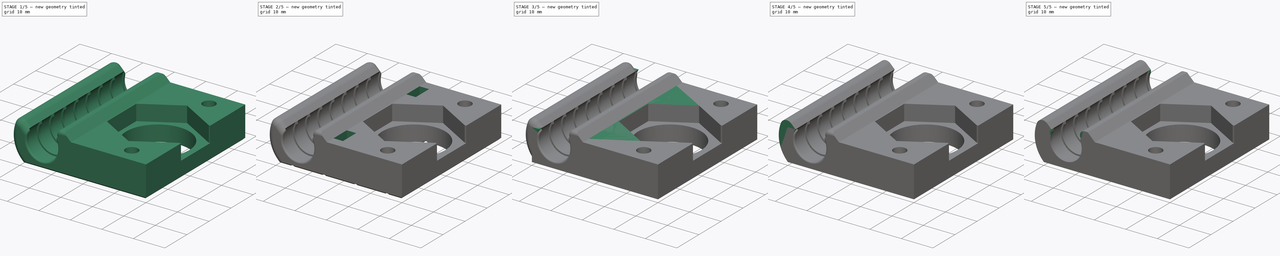
[diagram: build sequence overview — one tinted view per stage of 5, left to right]
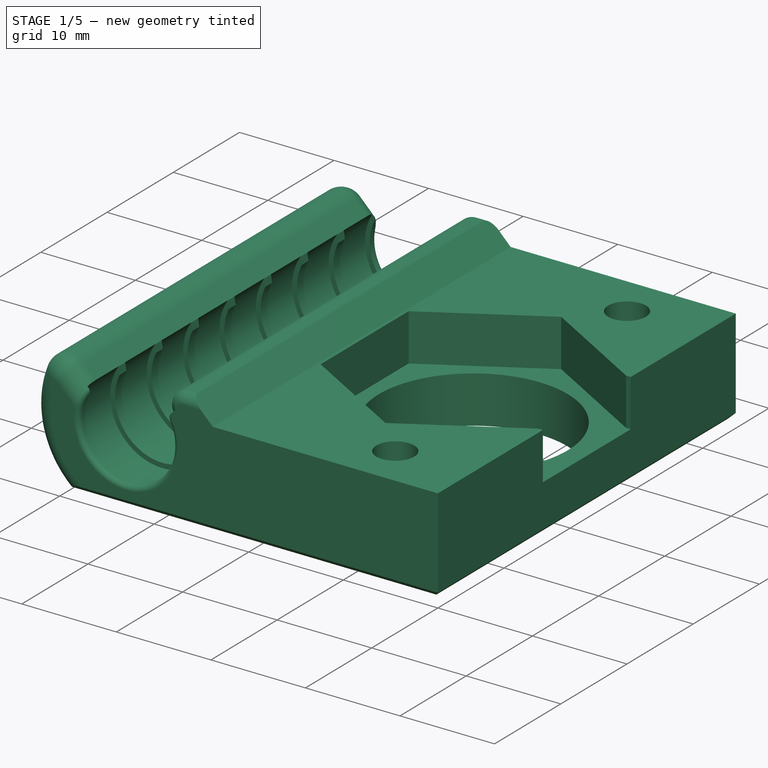
[diagram: stage 1 of 5 — iso view after this stage's code; geometry added in this stage tinted green]
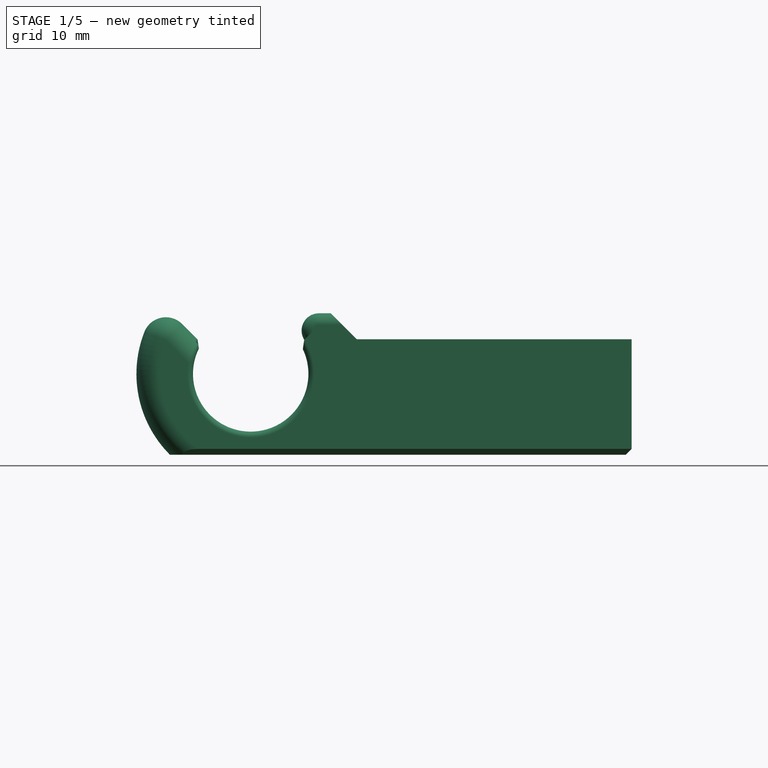
[diagram: stage 1 of 5 — front view after this stage's code; geometry added in this stage tinted green]
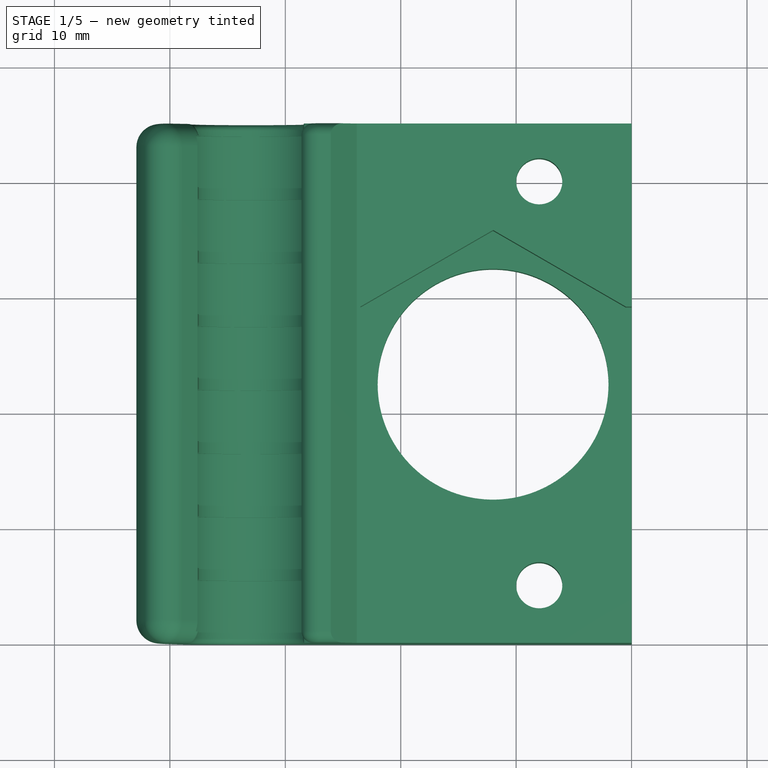
[diagram: stage 1 of 5 — top view after this stage's code; geometry added in this stage tinted green]
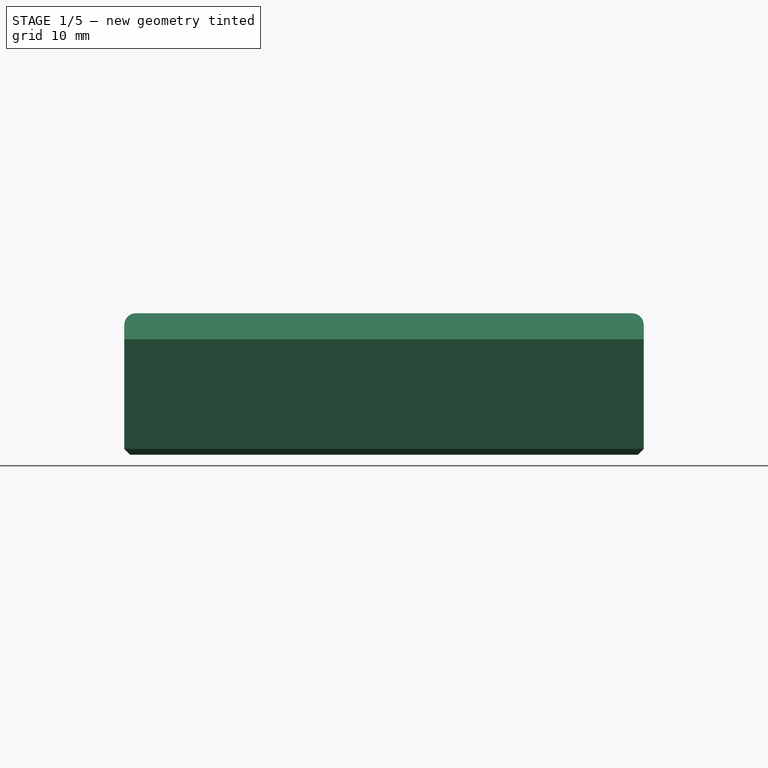
[diagram: stage 1 of 5 — right view after this stage's code; geometry added in this stage tinted green]
FCSTD DOCUMENT  (FreeCAD 0.16R6747 (Git))
Label: z-min_switch_mount_v4.1
License: All rights reserved
LicenseURL: http://en.wikipedia.org/wiki/All_rights_reserved
objects: Drawing::FeatureViewPython×19, Sketcher::SketchObject×10, PartDesign::Fillet×7, PartDesign::Pocket×6, Drawing::FeatureViewPart×6, PartDesign::Pad×4, PartDesign::Chamfer×4, PartDesign::LinearPattern×2, Part::Feature×1, Drawing::FeaturePage×1
note: 44 computed .brp shape members not serialized (recipe doc carries the construction recipe); baked Part::Feature solids carry a one-line shape summary decoded from their .brp

FEATURE [Part::Feature] Chamfer001001  label="Chamfer002"
  shape: bbox 42.9 x 45.09 x 12.25 mm, 84 faces (baked)
FEATURE [PartDesign::Chamfer] Chamfer001002
  Base = -> Chamfer001001 [Edge59,Edge57,Edge58]
  Size = 0.5
FEATURE [PartDesign::Fillet] Fillet003
  Base = -> Chamfer001002 [Edge1,Edge5]
  Radius = 2
FEATURE [PartDesign::Fillet] Fillet004
  Base = -> Fillet003 [Edge67,Edge78]
  Radius = 1
FEATURE [PartDesign::Fillet] Fillet005
  Base = -> Fillet004 [Edge68,Edge12]
  Radius = 0.5
FEATURE [Sketcher::SketchObject] Sketch007
  ExternalGeometry = -> [Fillet005]
  Placement = pos=(0,0,0) rot=(1,0,0;3.14159rad)
  Support = -> Fillet005 [Face19]
  sketch-geometry (2):
    g0: Circle CenterX=32 CenterY=-5 CenterZ=0 NormalX=0 NormalY=0 NormalZ=1 Radius=4
    g1: Circle CenterX=32 CenterY=-40 CenterZ=0 NormalX=0 NormalY=0 NormalZ=1 Radius=4
  constraints (4):
    c: Coincident(g0,g-3)
    c: Coincident(g1,g-5)
    c: Equal(g1,g-5)
    c: Equal(g-5,g0)
FEATURE [PartDesign::Pocket] Pocket003
  Length = 4
  Sketch = -> Sketch007
  Type = 0
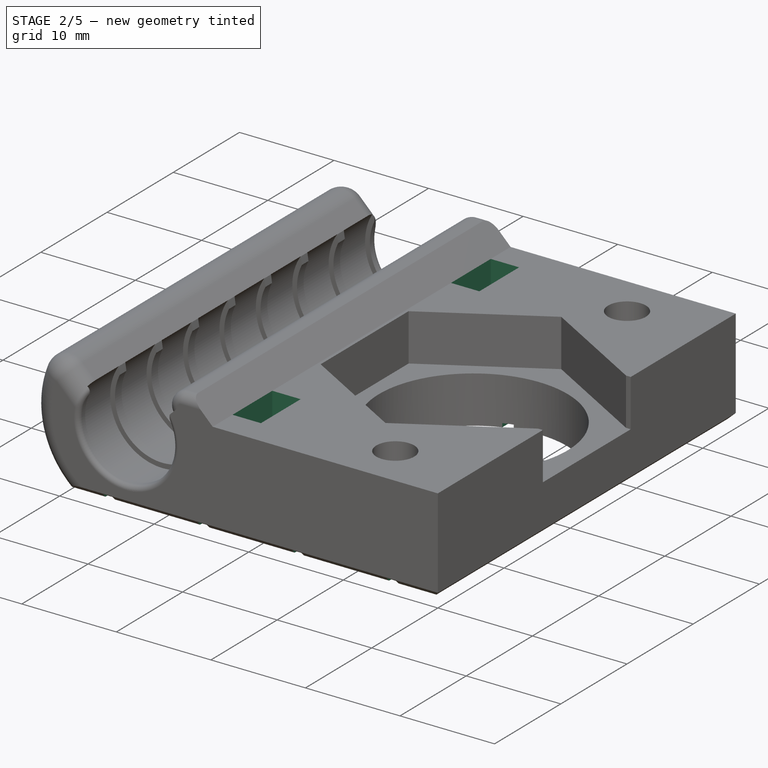
[diagram: stage 2 of 5 — iso view after this stage's code; geometry added in this stage tinted green]
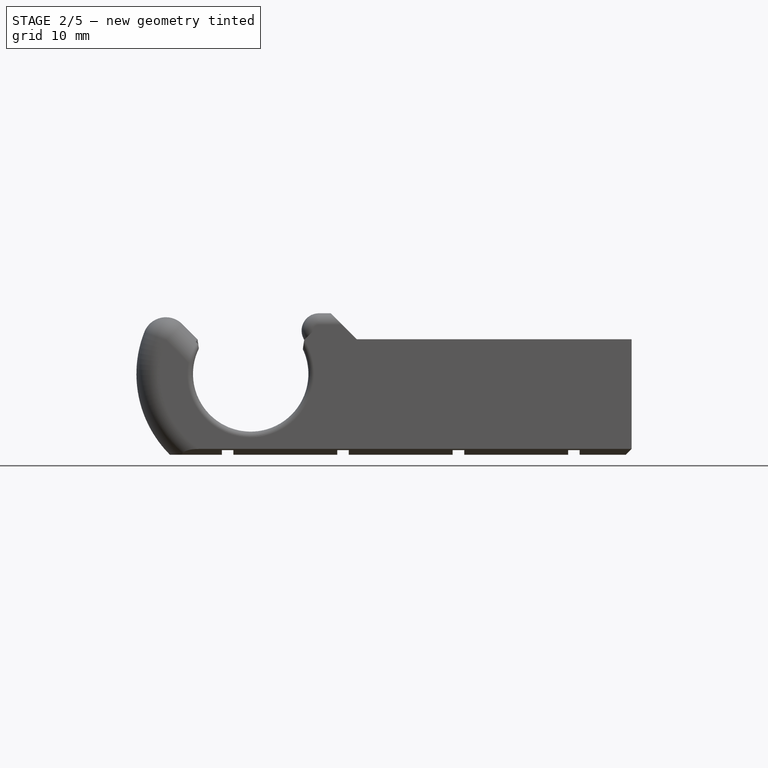
[diagram: stage 2 of 5 — front view after this stage's code; geometry added in this stage tinted green]
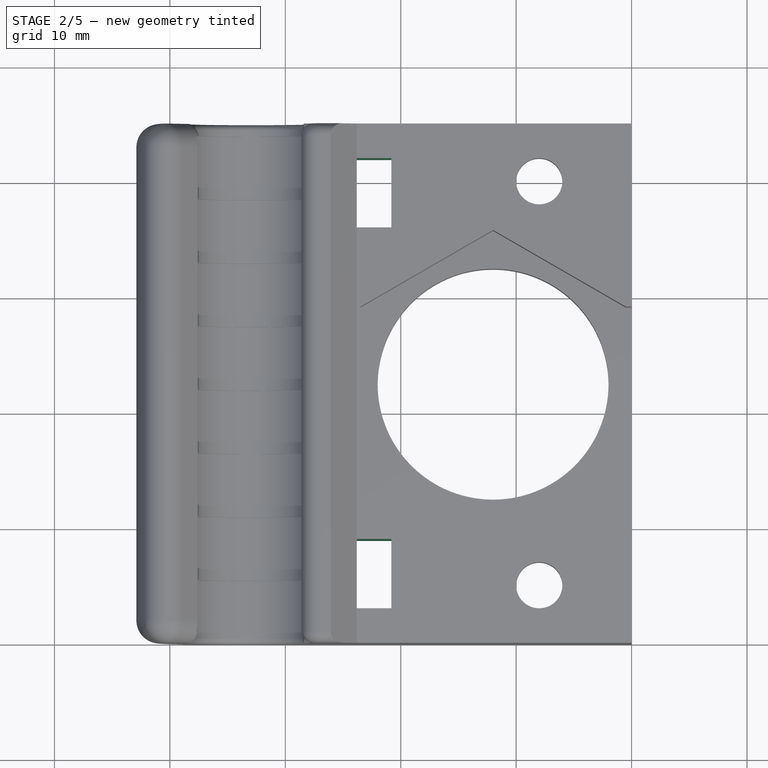
[diagram: stage 2 of 5 — top view after this stage's code; geometry added in this stage tinted green]
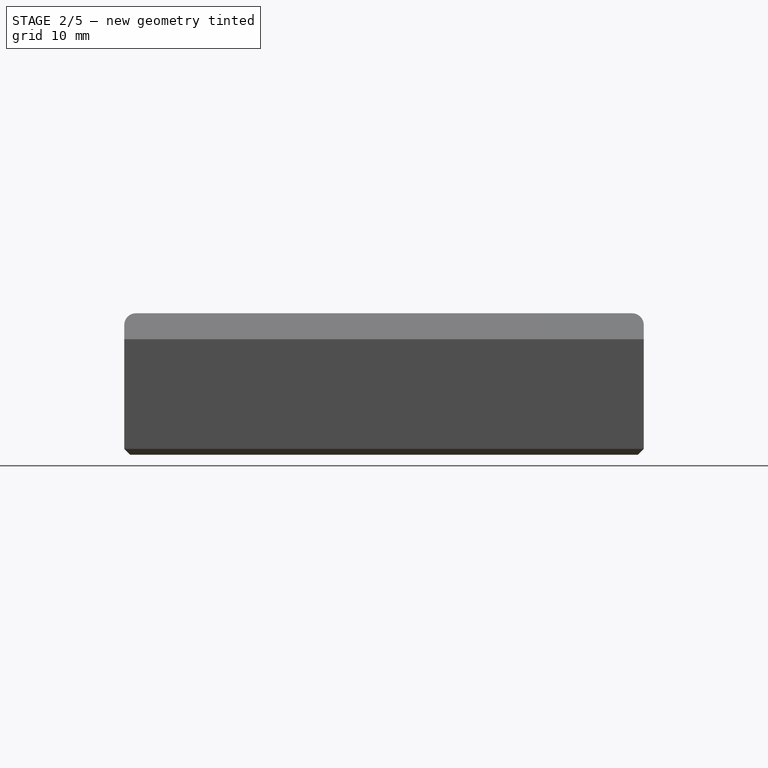
[diagram: stage 2 of 5 — right view after this stage's code; geometry added in this stage tinted green]
FEATURE [PartDesign::Chamfer] Chamfer001003
  Base = -> Pocket003 [Edge147,Edge149]
  Size = 1.99
FEATURE [Sketcher::SketchObject] Sketch008
  Placement = pos=(0,0,0) rot=(1,0,0;3.14159rad)
  Support = -> Chamfer001003 [Face36]
  sketch-geometry (4):
    g0: LineSegment StartX=5.5 StartY=0 StartZ=0 EndX=4.5 EndY=0 EndZ=0
    g1: LineSegment StartX=4.5 StartY=0 StartZ=0 EndX=4.5 EndY=-45 EndZ=0
    g2: LineSegment StartX=4.5 StartY=-45 StartZ=0 EndX=5.5 EndY=-45 EndZ=0
    g3: LineSegment StartX=5.5 StartY=-45 StartZ=0 EndX=5.5 EndY=0 EndZ=0
  constraints (12):
    c: Coincident(g0,g1)
    c: Coincident(g1,g2)
    c: Coincident(g2,g3)
    c: Coincident(g3,g0)
    c: Horizontal(g0)
    c: Horizontal(g2)
    c: Vertical(g1)
    c: Vertical(g3)
    c: PointOnObject(g0,g-1)
    c: DistanceX(g0) = -1
    c: DistanceX(g-1,g0) = 4.5
    c: DistanceY(g1) = -45
FEATURE [PartDesign::Pocket] Pocket004
  Length = 0.4
  Sketch = -> Sketch008
  Type = 0
FEATURE [PartDesign::LinearPattern] LinearPattern001
  Direction = -> Sketch008 [H_Axis]
  Length = 30
  Occurrences = 4
  Originals = -> [Pocket004]
FEATURE [Sketcher::SketchObject] Sketch009
  ExternalGeometry = -> [LinearPattern001]
  Placement = pos=(0,0,10) rot=(0,0,1;0rad)
  Support = -> LinearPattern001 [Face3]
  sketch-geometry (8):
    g0: LineSegment StartX=16.1847 StartY=36 StartZ=0 EndX=19.1847 EndY=36 EndZ=0
    g1: LineSegment StartX=19.1847 StartY=36 StartZ=0 EndX=19.1847 EndY=42 EndZ=0
    g2: LineSegment StartX=19.1847 StartY=42 StartZ=0 EndX=16.1847 EndY=42 EndZ=0
    g3: LineSegment StartX=16.1847 StartY=42 StartZ=0 EndX=16.1847 EndY=36 EndZ=0
    g4: LineSegment StartX=16.1847 StartY=9 StartZ=0 EndX=19.1847 EndY=9 EndZ=0
    g5: LineSegment StartX=19.1847 StartY=9 StartZ=0 EndX=19.1847 EndY=3 EndZ=0
    g6: LineSegment StartX=19.1847 StartY=3 StartZ=0 EndX=16.1847 EndY=3 EndZ=0
    g7: LineSegment StartX=16.1847 StartY=3 StartZ=0 EndX=16.1847 EndY=9 EndZ=0
  constraints (24):
    c: Coincident(g0,g1)
    c: Coincident(g1,g2)
    c: Coincident(g2,g3)
    c: Coincident(g3,g0)
    c: Horizontal(g0)
    c: Horizontal(g2)
    c: Vertical(g1)
    c: Vertical(g3)
    c: PointOnObject(g0,g-7)
    c: Coincident(g4,g5)
    c: Coincident(g5,g6)
    c: Coincident(g6,g7)
    c: Coincident(g7,g4)
    c: Horizontal(g4)
    c: Horizontal(g6)
    c: Vertical(g5)
    c: Vertical(g7)
    c: PointOnObject(g4,g-7)
    c: Equal(g6,g0)
    c: Equal(g1,g5)
    c: DistanceY(g1) = 6
    c: DistanceX(g2) = -3
    c: DistanceY(g2,g-7) = 3
    c: DistanceY(g-7,g6) = 3
FEATURE [PartDesign::Pocket] Pocket005
  Length = 5
  Sketch = -> Sketch009
  Type = 1
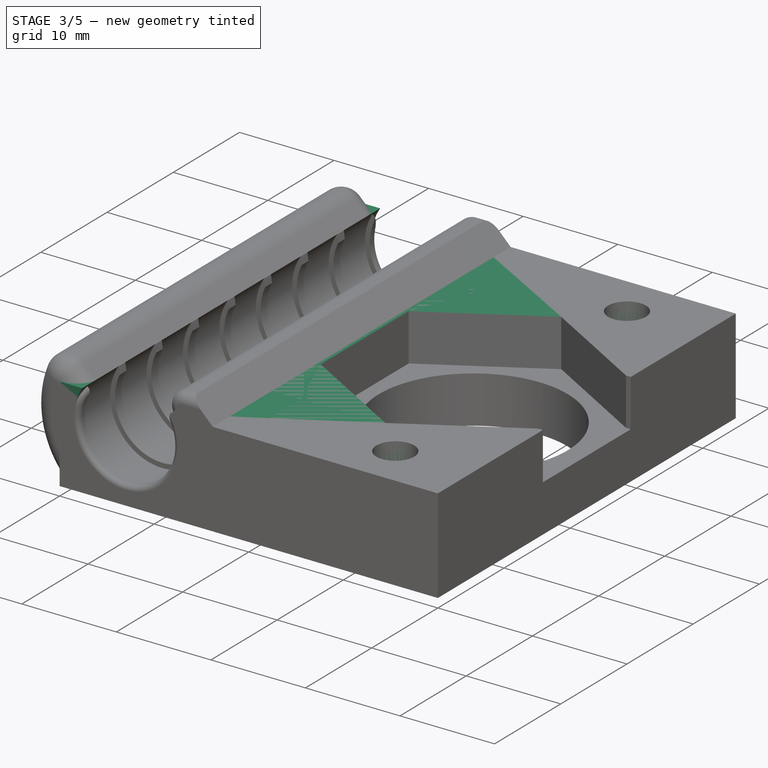
[diagram: stage 3 of 5 — iso view after this stage's code; geometry added in this stage tinted green]
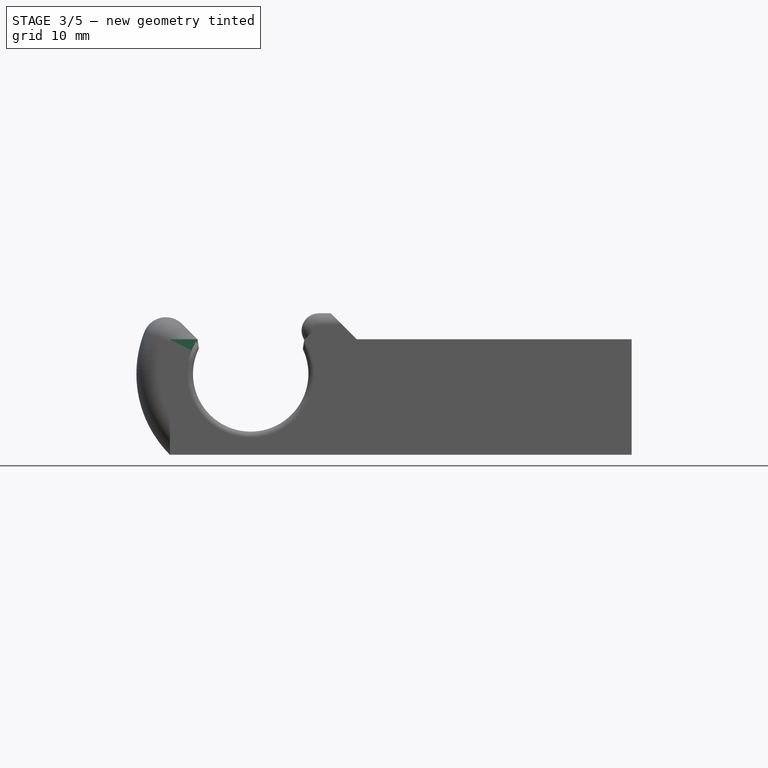
[diagram: stage 3 of 5 — front view after this stage's code; geometry added in this stage tinted green]
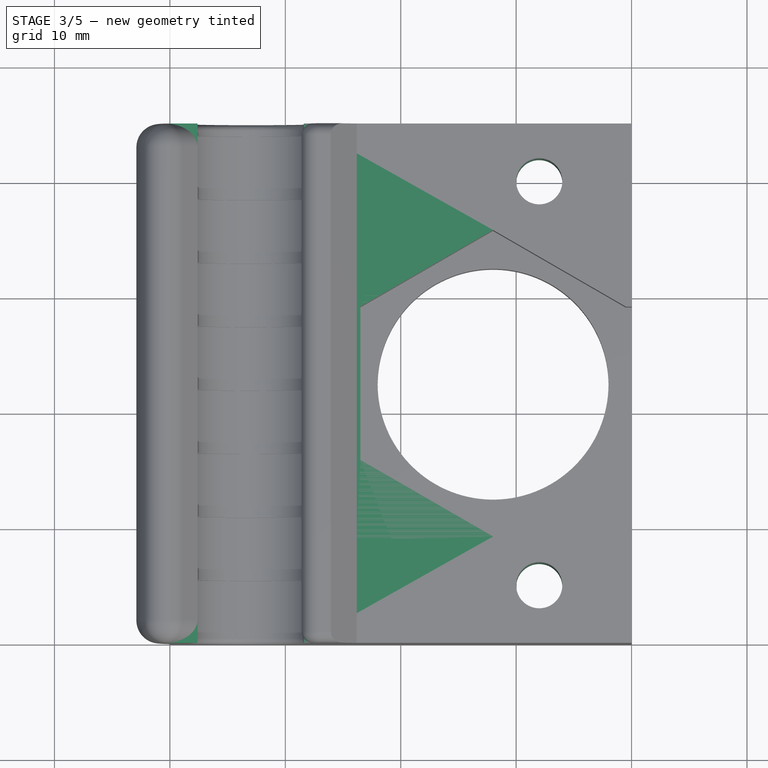
[diagram: stage 3 of 5 — top view after this stage's code; geometry added in this stage tinted green]
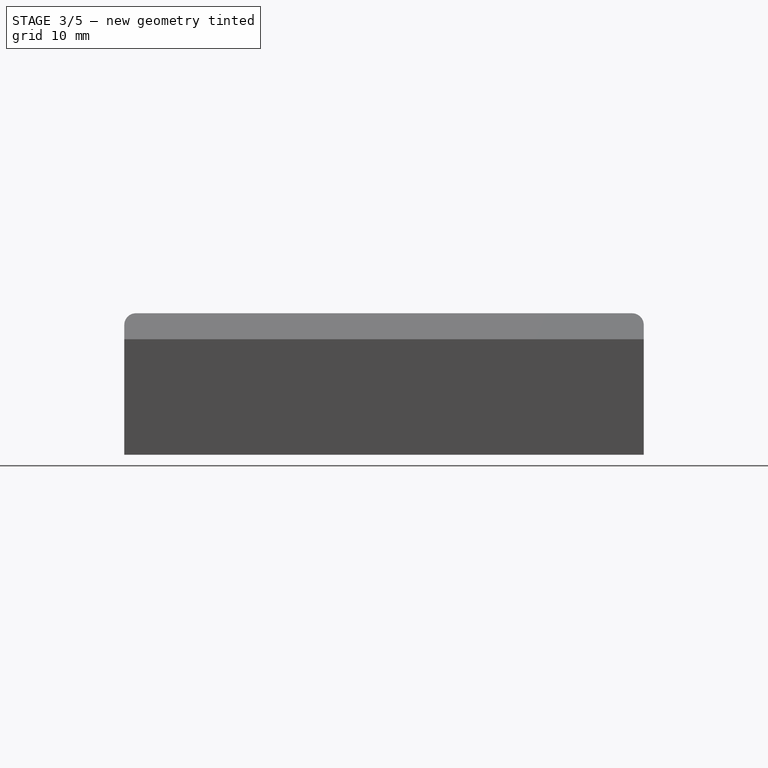
[diagram: stage 3 of 5 — right view after this stage's code; geometry added in this stage tinted green]
FEATURE [Sketcher::SketchObject] Sketch
  sketch-geometry (12):
    g0: LineSegment StartX=0 StartY=0 StartZ=0 EndX=40 EndY=0 EndZ=0
    g1: LineSegment StartX=40 StartY=0 StartZ=0 EndX=40 EndY=45 EndZ=0
    g2: LineSegment StartX=40 StartY=45 StartZ=0 EndX=0 EndY=45 EndZ=0
    g3: LineSegment StartX=0 StartY=45 StartZ=0 EndX=0 EndY=0 EndZ=0
    g4: Circle CenterX=28 CenterY=22.5 CenterZ=0 NormalX=0 NormalY=0 NormalZ=1 Radius=10
    g5: LineSegment [constr] StartX=40 StartY=45 StartZ=0 EndX=28 EndY=22.5 EndZ=0
    g6: LineSegment [constr] StartX=28 StartY=22.5 StartZ=0 EndX=40 EndY=0 EndZ=0
    g7: LineSegment [constr] StartX=40 StartY=45 StartZ=0 EndX=32 EndY=40 EndZ=0
    g8: LineSegment [constr] StartX=32 StartY=40 StartZ=0 EndX=32 EndY=5 EndZ=0
    g9: LineSegment [constr] StartX=32 StartY=5 StartZ=0 EndX=40 EndY=0 EndZ=0
    g10: Circle CenterX=32 CenterY=40 CenterZ=0 NormalX=0 NormalY=0 NormalZ=1 Radius=2
    g11: Circle CenterX=32 CenterY=5 CenterZ=0 NormalX=0 NormalY=0 NormalZ=1 Radius=2
  constraints (30):
    c: Coincident(g0,g1)
    c: Coincident(g1,g2)
    c: Coincident(g2,g3)
    c: Coincident(g3,g0)
    c: Horizontal(g0)
    c: Horizontal(g2)
    c: Vertical(g1)
    c: Vertical(g3)
    c: Coincident(g0,g-1)
    c: DistanceY(g3) = -45
    c: DistanceX(g2) = -40
    c: Coincident(g1,g5)
    c: Coincident(g5,g4)
    c: Coincident(g5,g6)
    c: Coincident(g6,g0)
    c: Equal(g6,g5)
    c: Radius(g4) = 10
    c: DistanceX(g4,g1) = 12
    c: Coincident(g1,g7)
    c: Coincident(g7,g8)
    c: Vertical(g8)
    c: Coincident(g8,g9)
    c: Coincident(g9,g0)
    c: Equal(g9,g7)
    c: DistanceY(g8) = -35
    c: Coincident(g10,g7)
    c: Coincident(g11,g8)
    c: Equal(g11,g10)
    c: Radius(g10) = 2
    c: DistanceX(g8,g0) = 8
FEATURE [PartDesign::Pad] Pad
  Length = 10
  Length2 = 100
  Sketch = -> Sketch
  Type = 0
FEATURE [Sketcher::SketchObject] Sketch001
  Placement = pos=(0,0,0) rot=(1,0,0;1.5708rad)
  Support = -> Pad [Face1]
  sketch-geometry (1):
    g0: Circle CenterX=7 CenterY=7 CenterZ=0 NormalX=0 NormalY=0 NormalZ=1 Radius=5.5
  constraints (3):
    c: Radius(g0) = 5.5
    c: DistanceX(g0) = 7
    c: DistanceY(g0) = 7
FEATURE [PartDesign::Pocket] Pocket
  Length = 5
  Sketch = -> Sketch001
  Type = 1
FEATURE [Sketcher::SketchObject] Sketch002
  ExternalGeometry = -> [Pocket]
  Placement = pos=(0,0,10) rot=(0,0,1;0rad)
  Support = -> Pocket [Face4]
  sketch-geometry (7):
    g0: LineSegment StartX=39.5 StartY=29.1395 StartZ=0 EndX=28 EndY=35.7791 EndZ=0
    g1: LineSegment StartX=28 StartY=35.7791 StartZ=0 EndX=16.5 EndY=29.1395 EndZ=0
    g2: LineSegment StartX=16.5 StartY=29.1395 StartZ=0 EndX=16.5 EndY=15.8605 EndZ=0
    g3: LineSegment StartX=16.5 StartY=15.8605 StartZ=0 EndX=28 EndY=9.22094 EndZ=0
    g4: LineSegment StartX=28 StartY=9.22094 StartZ=0 EndX=39.5 EndY=15.8605 EndZ=0
    g5: LineSegment StartX=39.5 StartY=15.8605 StartZ=0 EndX=39.5 EndY=29.1395 EndZ=0
    g6: Circle [constr] CenterX=28 CenterY=22.5 CenterZ=0 NormalX=0 NormalY=0 NormalZ=1 Radius=13.2791
  constraints (16):
    c: Coincident(g0,g1)
    c: Coincident(g1,g2)
    c: Coincident(g2,g3)
    c: Coincident(g3,g4)
    c: Coincident(g4,g5)
    c: Coincident(g5,g0)
    c: Equal(g0, g1-g5) x5
    c: PointOnObject(g0,g6)
    c: PointOnObject(g1,g6)
    c: PointOnObject(g2,g6)
    c: PointOnObject(g3,g6)
    c: PointOnObject(g4,g6)
    c: PointOnObject(g5,g6)
    c: Coincident(g6,g-3)
    c: Vertical(g5)
    c: DistanceX(g2,g4) = 23
FEATURE [PartDesign::Pocket] Pocket001
  Length = 5
  Sketch = -> Sketch002
  Type = 0
FEATURE [Sketcher::SketchObject] Sketch003
  ExternalGeometry = -> [Pocket001]
  Placement = pos=(0,0,10) rot=(0,0,1;0rad)
  Support = -> Pocket001 [Face4]
  sketch-geometry (4):
    g0: LineSegment StartX=39.5 StartY=29.1395 StartZ=0 EndX=41.5 EndY=29.1395 EndZ=0
    g1: LineSegment StartX=41.5 StartY=29.1395 StartZ=0 EndX=41.5 EndY=15.8605 EndZ=0
    g2: LineSegment StartX=41.5 StartY=15.8605 StartZ=0 EndX=39.5 EndY=15.8605 EndZ=0
    g3: LineSegment StartX=39.5 StartY=15.8605 StartZ=0 EndX=39.5 EndY=29.1395 EndZ=0
  constraints (11):
    c: Coincident(g0,g1)
    c: Coincident(g1,g2)
    c: Coincident(g2,g3)
    c: Coincident(g3,g0)
    c: Horizontal(g0)
    c: Horizontal(g2)
    c: Vertical(g1)
    c: Vertical(g3)
    c: Coincident(g0,g-3)
    c: Coincident(g-3,g2)
    c: DistanceX(g0) = 2
FEATURE [PartDesign::Pocket] Pocket002
  Length = 5
  Sketch = -> Sketch003
  Type = 0
FEATURE [PartDesign::Fillet] Fillet006
  Base = -> Pocket005 [Edge172,Edge171]
  Radius = 0.7
FEATURE [Drawing::FeatureViewPart] Ortho  label="Ortho_0_0"
  Direction = (0,0,-1)
  HiddenWidth = 0.15
  LineWidth = 0.35
  Rotation = 180
  ShowHiddenLines = false
  ShowSmoothLines = true
  Source = -> Fillet006
  Tolerance = 0.05
  ViewResult = <blob: 10069 chars omitted>
  Visible = true
  X = 112.059
  Y = 73.5
FEATURE [Drawing::FeatureViewPart] Ortho001  label="Ortho_1_0"
  Direction = (1,0,0)
  HiddenWidth = 0.15
  LineWidth = 0.35
  Rotation = 0
  ShowHiddenLines = false
  ShowSmoothLines = true
  Source = -> Fillet006
  Tolerance = 0.05
  ViewResult = <blob: 5549 chars omitted>
  Visible = true
  X = 170
  Y = 73.5
FEATURE [Drawing::FeatureViewPart] Ortho002  label="Ortho_2_0"
  Direction = (0,0,1)
  HiddenWidth = 0.15
  LineWidth = 0.35
  Rotation = 180
  ShowHiddenLines = false
  ShowSmoothLines = true
  Source = -> Fillet006
  Tolerance = 0.05
  ViewResult = <blob: 22013 chars omitted>
  Visible = true
  X = 240
  Y = 73.5
FEATURE [Drawing::FeatureViewPart] Ortho003  label="Ortho_-1_0"
  Direction = (-1,0,0)
  HiddenWidth = 0.15
  LineWidth = 0.35
  Rotation = 0
  ShowHiddenLines = false
  ShowSmoothLines = true
  Source = -> Fillet006
  Tolerance = 0.05
  ViewResult = <blob: 5748 chars omitted>
  Visible = true
  X = 90
  Y = 73.5
FEATURE [Drawing::FeatureViewPart] Ortho004  label="Ortho_0_1"
  Direction = (0,-1,0)
  HiddenWidth = 0.15
  LineWidth = 0.35
  Rotation = 90
  ShowHiddenLines = false
  ShowSmoothLines = true
  Source = -> Fillet006
  Tolerance = 0.05
  ViewResult = <blob: 5313 chars omitted>
  Visible = true
  X = 112.06
  Y = 63
FEATURE [Drawing::FeatureViewPart] Ortho005  label="Ortho_0_-1"
  Direction = (0,1,0)
  HiddenWidth = 0.15
  LineWidth = 0.35
  Rotation = 90
  ShowHiddenLines = false
  ShowSmoothLines = true
  Source = -> Fillet006
  Tolerance = 0.05
  ViewResult = <blob: 5481 chars omitted>
  Visible = true
  X = 112.059
  Y = 130
FEATURE [Drawing::FeatureViewPython] text001  # drawing view (typed FeaturePython)
  Rotation = 0
  ViewResult = <g> <text x="158.922642" y="127.659171" font-family="inherit" font-size="5" fill="rgb(0,0,0)" text-anchor="inherit" transform="rotate(0.000000 158.922642,127.659171)" >'A'</text> </g>
  Visible = true
  X = 0
  Y = 0
  click1_x = 158.923
  click1_y = 127.659
  rotation = 0
  text = 'A'
  textRenderer_addText_color = rgb(0,0,0)
  textRenderer_addText_family = inherit
  textRenderer_addText_size = 5
FEATURE [Drawing::FeatureViewPython] text002  # drawing view (typed FeaturePython)
  Rotation = 0
  ViewResult = <g> <text x="65.535179" y="71.348784" font-family="inherit" font-size="5" fill="rgb(0,0,0)" text-anchor="inherit" transform="rotate(0.000000 65.535179,71.348784)" >'A'</text> </g>
  Visible = true
  X = 0
  Y = 0
  click1_x = 65.5352
  click1_y = 71.3488
  rotation = 0
  text = 'A'
  textRenderer_addText_color = rgb(0,0,0)
  textRenderer_addText_family = inherit
  textRenderer_addText_size = 5
FEATURE [Drawing::FeatureViewPython] text003  # drawing view (typed FeaturePython)
  Rotation = 0
  ViewResult = <g> <text x="156.174560" y="43.602034" font-family="inherit" font-size="5" fill="rgb(0,0,0)" text-anchor="inherit" transform="rotate(0.000000 156.174560,43.602034)" >'B'</text> </g>
  Visible = true
  X = 0
  Y = 0
  click1_x = 156.175
  click1_y = 43.602
  rotation = 0
  text = 'B'
  textRenderer_addText_color = rgb(0,0,0)
  textRenderer_addText_family = inherit
  textRenderer_addText_size = 5
FEATURE [Drawing::FeatureViewPython] text004  # drawing view (typed FeaturePython)
  Rotation = 0
  ViewResult = <g> <text x="189.470659" y="131.334613" font-family="inherit" font-size="5" fill="rgb(0,0,0)" text-anchor="inherit" transform="rotate(0.000000 189.470659,131.334613)" >'C'</text> </g>
  Visible = true
  X = 0
  Y = 0
  click1_x = 189.471
  click1_y = 131.335
  rotation = 0
  text = 'C'
  textRenderer_addText_color = rgb(0,0,0)
  textRenderer_addText_family = inherit
  textRenderer_addText_size = 5
FEATURE [Drawing::FeatureViewPython] text005  # drawing view (typed FeaturePython)
  Rotation = 0
  ViewResult = <g> <text x="224.352286" y="63.156886" font-family="inherit" font-size="5" fill="rgb(0,0,0)" text-anchor="inherit" transform="rotate(0.000000 224.352286,63.156886)" >'D'</text> </g>
  Visible = true
  X = 0
  Y = 0
  click1_x = 224.352
  click1_y = 63.1569
  rotation = 0
  text = 'D'
  textRenderer_addText_color = rgb(0,0,0)
  textRenderer_addText_family = inherit
  textRenderer_addText_size = 5
FEATURE [Drawing::FeatureViewPython] grabPoint001  # drawing view (typed FeaturePython)
  Rotation = 0
  ViewResult = <g> <line x1="85.2347705516" y1="83.8275927359" x2="85.2347705516" y2="83.8275927359" style="stroke:rgb(0,0,0);stroke-width:0.01" /> </g> 
  Visible = true
  X = 0
  Y = 0
  click1_x = 85.2348
  click1_y = 83.8276
FEATURE [Drawing::FeatureViewPython] grabPoint002  # drawing view (typed FeaturePython)
  Rotation = 0
  ViewResult = <g> <line x1="141.52188318" y1="136.094197319" x2="141.52188318" y2="136.094197319" style="stroke:rgb(0,0,0);stroke-width:0.01" /> </g> 
  Visible = true
  X = 0
  Y = 0
  click1_x = 141.522
  click1_y = 136.094
FEATURE [Drawing::FeatureViewPython] grabPoint003  # drawing view (typed FeaturePython)
  Rotation = 0
  ViewResult = <g> <line x1="130.666511459" y1="103.93013296" x2="130.666511459" y2="103.93013296" style="stroke:rgb(0,0,0);stroke-width:0.01" /> </g> 
  Visible = true
  X = 0
  Y = 0
  click1_x = 130.667
  click1_y = 103.93
FEATURE [Drawing::FeatureViewPython] grabPoint004  # drawing view (typed FeaturePython)
  Rotation = 0
  ViewResult = <g> <line x1="139.431218997" y1="57.1716243983" x2="139.431218997" y2="57.1716243983" style="stroke:rgb(0,0,0);stroke-width:0.01" /> </g> 
  Visible = true
  X = 0
  Y = 0
  click1_x = 139.431
  click1_y = 57.1716
FEATURE [Drawing::FeatureViewPython] grabPoint005  # drawing view (typed FeaturePython)
  Rotation = 0
  ViewResult = <g> <line x1="175.374560918" y1="112.172174452" x2="175.374560918" y2="112.172174452" style="stroke:rgb(0,0,0);stroke-width:0.01" /> </g> 
  Visible = true
  X = 0
  Y = 0
  click1_x = 175.375
  click1_y = 112.172
FEATURE [Drawing::FeatureViewPython] grabPoint006  # drawing view (typed FeaturePython)
  Rotation = 0
  ViewResult = <g> <line x1="215.660051528" y1="113.619557348" x2="215.660051528" y2="113.619557348" style="stroke:rgb(0,0,0);stroke-width:0.01" /> </g> 
  Visible = true
  X = 0
  Y = 0
  click1_x = 215.66
  click1_y = 113.62
FEATURE [Drawing::FeatureViewPython] grabPoint007  # drawing view (typed FeaturePython)
  Rotation = 0
  ViewResult = <g> <line x1="211.800363805" y1="85.3955908734" x2="211.800363805" y2="85.3955908734" style="stroke:rgb(0,0,0);stroke-width:0.01" /> </g> 
  Visible = true
  X = 0
  Y = 0
  click1_x = 211.8
  click1_y = 85.3956
FEATURE [Drawing::FeatureViewPython] weld001  # drawing view (typed FeaturePython)
  Rotation = 0
  ViewResult = <g   >\n<line x1="75.022680" y1="72.610375" x2="85.234771" y2="83.827593" style="stroke:rgb(0,0,255);stroke-width:0.50" />\n<polygon points="85.234771,83.827593 83.954630,80.936012 82.541969,80.869752 82.475709,82.282413" style="fill:rgb(0,0,255);stroke:rgb(0,0,255);stroke-width:0" />\n<line x1="75.022680" y1="72.610375" x2="62.478695" y2="72.610375" style="stroke:rgb(0,0,255);stroke-width:0.50" />\n</g> 
  Visible = true
  X = 0
  Y = 0
  arrowL1 = 3
  arrowL2 = 1
  arrowW = 2
  click1_x = 75.0227
  click1_y = 72.6104
  click2_x = 62.4787
  click2_y = 71.6455
  lineColor = rgb(0,0,255)
  strokeWidth = 0.5
  textRenderer_color = rgb(0,0,255)
  textRenderer_family = inherit
  textRenderer_size = 3.6
FEATURE [Drawing::FeatureViewPython] weld002  # drawing view (typed FeaturePython)
  Rotation = 0
  ViewResult = <g   >\n<line x1="151.975204" y1="44.627639" x2="139.431219" y2="57.171624" style="stroke:rgb(0,0,255);stroke-width:0.50" />\n<polygon points="139.431219,57.171624 142.259646,55.757411 142.259646,54.343197 140.845433,54.343197" style="fill:rgb(0,0,255);stroke:rgb(0,0,255);stroke-width:0" />\n<line x1="151.975204" y1="44.627639" x2="165.966572" y2="44.627639" style="stroke:rgb(0,0,255);stroke-width:0.50" />\n</g> 
  Visible = true
  X = 0
  Y = 0
  arrowL1 = 3
  arrowL2 = 1
  arrowW = 2
  click1_x = 151.975
  click1_y = 44.6276
  click2_x = 165.967
  click2_y = 44.3864
  lineColor = rgb(0,0,255)
  strokeWidth = 0.5
  textRenderer_color = rgb(0,0,255)
  textRenderer_family = inherit
  textRenderer_size = 3.6
FEATURE [Drawing::FeatureViewPython] weld003  # drawing view (typed FeaturePython)
  Rotation = 0
  ViewResult = <g   >\n<line x1="158.002322" y1="128.824193" x2="130.666511" y2="103.930133" style="stroke:rgb(0,0,255);stroke-width:0.50" />\n<polygon points="130.666511,103.930133 132.211267,106.689432 133.623938,106.623389 133.557895,105.210719" style="fill:rgb(0,0,255);stroke:rgb(0,0,255);stroke-width:0" />\n<line x1="158.002322" y1="128.824193" x2="166.994324" y2="128.824193" style="stroke:rgb(0,0,255);stroke-width:0.50" />\n</g> 
  Visible = true
  X = 0
  Y = 0
  arrowL1 = 3
  arrowL2 = 1
  arrowW = 2
  click1_x = 158.002
  click1_y = 128.824
  click2_x = 166.994
  click2_y = 127.356
  lineColor = rgb(0,0,255)
  strokeWidth = 0.5
  textRenderer_color = rgb(0,0,255)
  textRenderer_family = inherit
  textRenderer_size = 3.6
FEATURE [Drawing::FeatureViewPython] weld004  # drawing view (typed FeaturePython)
  Rotation = 0
  ViewResult = <g   >\n<line x1="158.167061" y1="128.838786" x2="141.521883" y2="136.094197" style="stroke:rgb(0,0,255);stroke-width:0.50" />\n<polygon points="141.521883,136.094197 144.671559,135.812165 145.188681,134.495889 143.872405,133.978766" style="fill:rgb(0,0,255);stroke:rgb(0,0,255);stroke-width:0" />\n<line x1="158.167061" y1="128.838786" x2="158.167061" y2="128.838786" style="stroke:rgb(0,0,255);stroke-width:0.50" />\n</g> 
  Visible = true
  X = 0
  Y = 0
  arrowL1 = 3
  arrowL2 = 1
  arrowW = 2
  click1_x = 158.167
  click1_y = 128.839
  click2_x = 158.167
  click2_y = 128.839
  lineColor = rgb(0,0,255)
  strokeWidth = 0.5
  textRenderer_color = rgb(0,0,255)
  textRenderer_family = inherit
  textRenderer_size = 3.6
FEATURE [Drawing::FeatureViewPython] weld005  # drawing view (typed FeaturePython)
  Rotation = 0
  ViewResult = <g   >\n<line x1="188.762853" y1="133.078816" x2="175.374561" y2="112.172174" style="stroke:rgb(0,0,255);stroke-width:0.50" />\n<polygon points="175.374561,112.172174 176.150287,115.237831 177.531695,115.540672 177.834536,114.159264" style="fill:rgb(0,0,255);stroke:rgb(0,0,255);stroke-width:0" />\n<line x1="188.762853" y1="133.078816" x2="197.808996" y2="133.078816" style="stroke:rgb(0,0,255);stroke-width:0.50" />\n</g> 
  Visible = true
  X = 0
  Y = 0
  arrowL1 = 3
  arrowL2 = 1
  arrowW = 2
  click1_x = 188.763
  click1_y = 133.079
  click2_x = 197.809
  click2_y = 132.677
  lineColor = rgb(0,0,255)
  strokeWidth = 0.5
  textRenderer_color = rgb(0,0,255)
  textRenderer_family = inherit
  textRenderer_size = 3.6
FEATURE [Drawing::FeatureViewPython] weld006  # drawing view (typed FeaturePython)
  Rotation = 0
  ViewResult = <g   >\n<line x1="197.687259" y1="133.218753" x2="215.660052" y2="113.619557" style="stroke:rgb(0,0,255);stroke-width:0.50" />\n<polygon points="215.660052,113.619557 212.895431,115.154769 212.956592,116.567660 214.369483,116.506499" style="fill:rgb(0,0,255);stroke:rgb(0,0,255);stroke-width:0" />\n<line x1="197.687259" y1="133.218753" x2="197.687259" y2="133.218753" style="stroke:rgb(0,0,255);stroke-width:0.50" />\n</g> 
  Visible = true
  X = 0
  Y = 0
  arrowL1 = 3
  arrowL2 = 1
  arrowW = 2
  click1_x = 197.687
  click1_y = 133.219
  click2_x = 197.687
  click2_y = 133.219
  lineColor = rgb(0,0,255)
  strokeWidth = 0.5
  textRenderer_color = rgb(0,0,255)
  textRenderer_family = inherit
  textRenderer_size = 3.6
FEATURE [Drawing::FeatureViewPython] weld007  # drawing view (typed FeaturePython)
  Rotation = 0
  ViewResult = <g   >\n<line x1="224.983561" y1="64.962627" x2="212.000000" y2="86.000000" style="stroke:rgb(0,0,255);stroke-width:0.50" />\n<polygon points="212.000000,86.000000 214.426571,83.972254 214.100787,82.596077 212.724610,82.921861" style="fill:rgb(0,0,255);stroke:rgb(0,0,255);stroke-width:0" />\n<line x1="224.983561" y1="64.962627" x2="232.140461" y2="64.962627" style="stroke:rgb(0,0,255);stroke-width:0.50" />\n</g> 
  Visible = true
  X = 0
  Y = 0
  arrowL1 = 3
  arrowL2 = 1
  arrowW = 2
  click1_x = 224.984
  click1_y = 64.9626
  click2_x = 232.14
  click2_y = 65.3296
  lineColor = rgb(0,0,255)
  strokeWidth = 0.5
  textRenderer_color = rgb(0,0,255)
  textRenderer_family = inherit
  textRenderer_size = 3.6
FEATURE [Drawing::FeaturePage] Page
  EditableTexts = AUTHOR NAME | CREATION DATE | SUPERVISOR NAME | CHECK DATE | SCALE | WEIGHT | NUMBER | SHEET | TITLE | SUBTITLE
  Group = -> [Ortho,Ortho001,Ortho002,Ortho003,Ortho004,Ortho005,text001,text002,text003,text004,text005,grabPoint001,grabPoint002,grabPoint003,grabPoint004,grabPoint005,grabPoint006,grabPoint007,weld001,weld002,weld003,weld004,weld005,weld006,weld007]
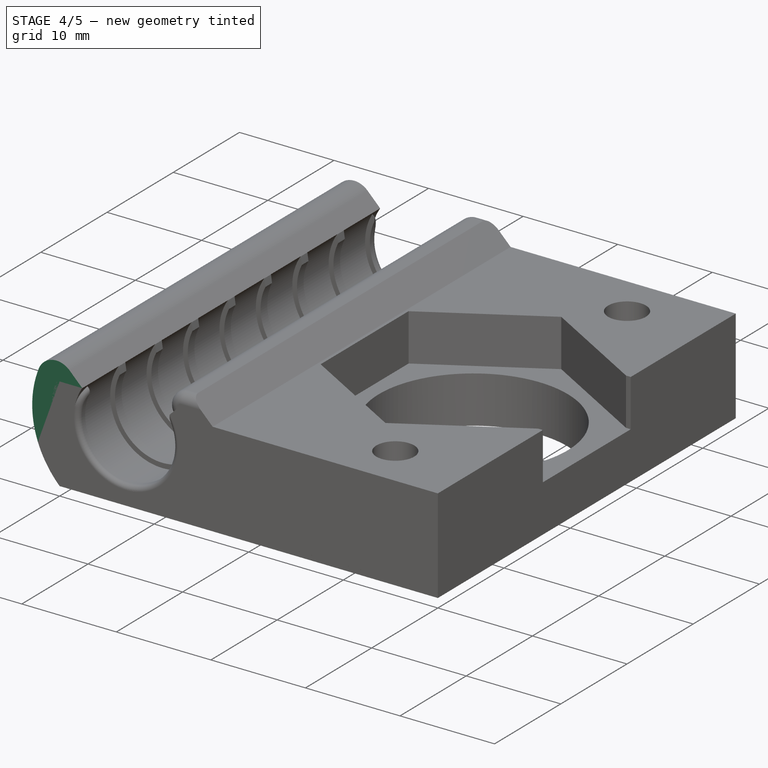
[diagram: stage 4 of 5 — iso view after this stage's code; geometry added in this stage tinted green]
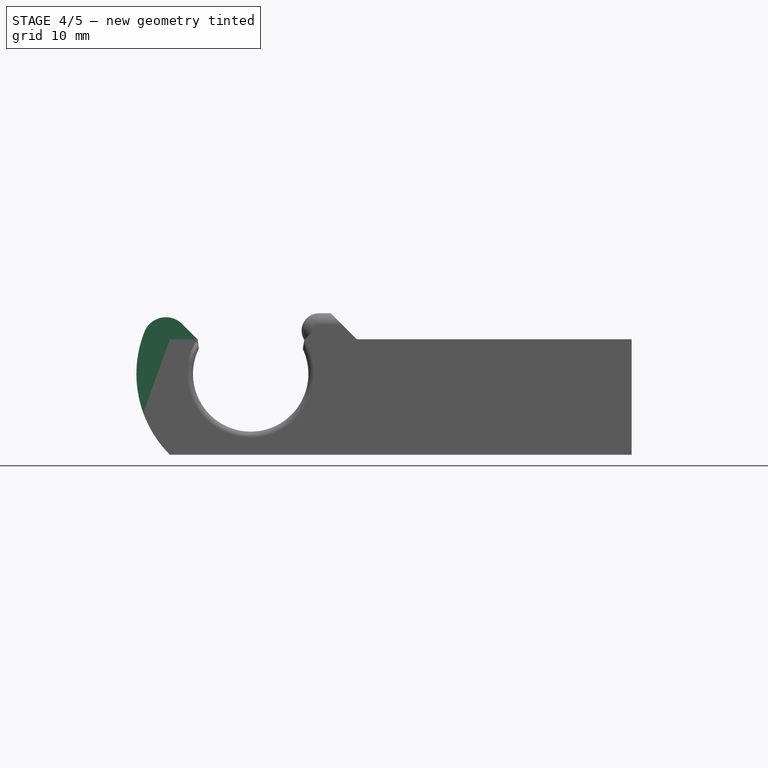
[diagram: stage 4 of 5 — front view after this stage's code; geometry added in this stage tinted green]
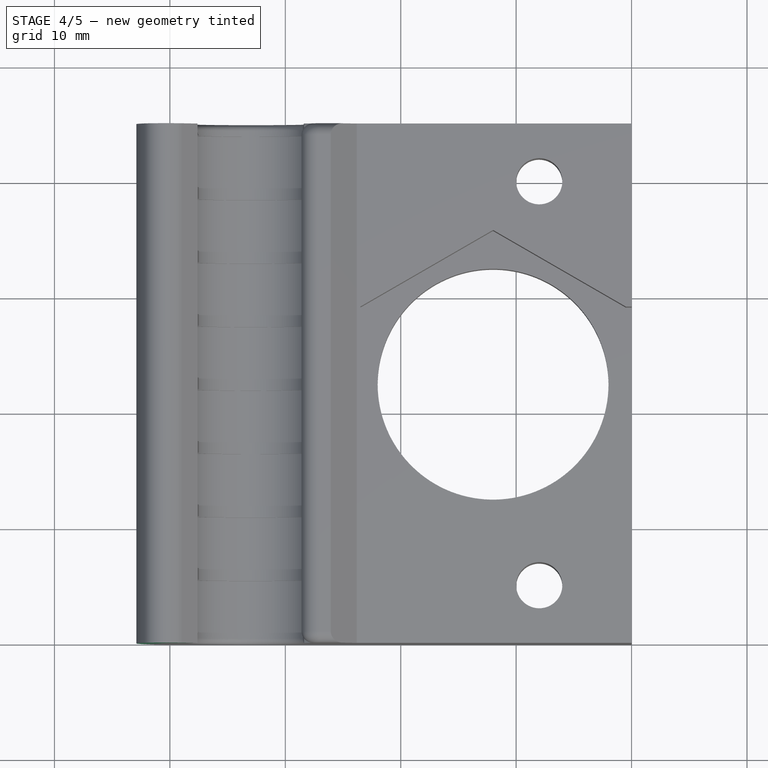
[diagram: stage 4 of 5 — top view after this stage's code; geometry added in this stage tinted green]
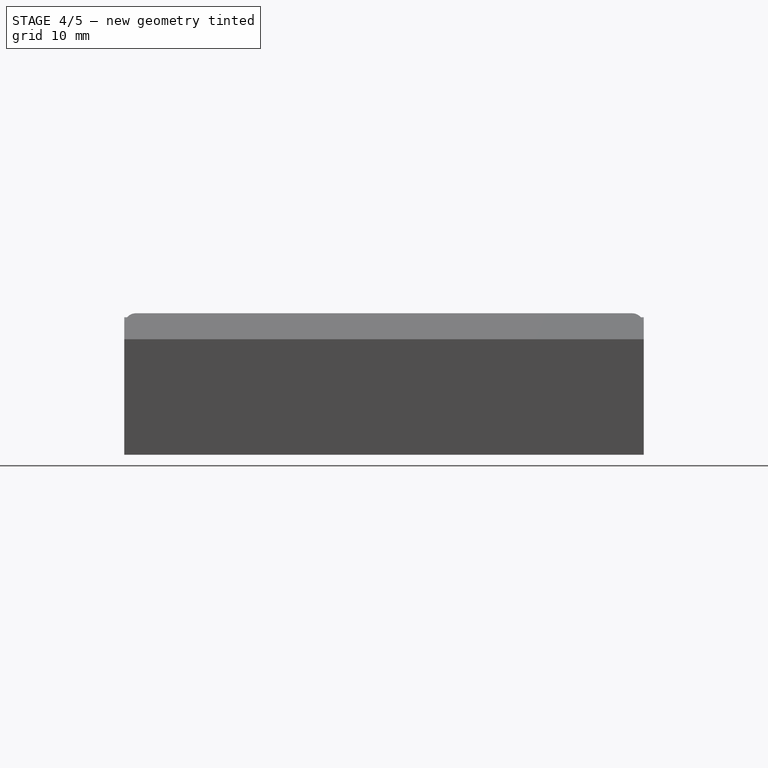
[diagram: stage 4 of 5 — right view after this stage's code; geometry added in this stage tinted green]
FEATURE [PartDesign::Chamfer] Chamfer
  Base = -> Pocket002 [Edge13,Edge12]
  Size = 2
FEATURE [Sketcher::SketchObject] Sketch004
  ExternalGeometry = -> [Chamfer]
  Placement = pos=(0,0,0) rot=(1,0,0;1.5708rad)
  Support = -> Chamfer [Face3]
  sketch-geometry (4):
    g0: ArcOfCircle CenterX=7 CenterY=7 CenterZ=0 NormalX=0 NormalY=0 NormalZ=1 Radius=9.89949 StartAngle=2.47143 EndAngle=3.92699
    g1: LineSegment StartX=-0.758458 StartY=13.1487 StartZ=0 EndX=2.39023 EndY=10 EndZ=0
    g2: LineSegment StartX=2.39023 StartY=10 StartZ=0 EndX=0.787398 EndY=9 EndZ=0
    g3: LineSegment StartX=0.787398 StartY=9 StartZ=0 EndX=0 EndY=0 EndZ=0
  constraints (10):
    c: Coincident(g0,g-3)
    c: Coincident(g0,g-1)
    c: Coincident(g1,g0)
    c: Coincident(g1,g-3)
    c: Angle(g1,g-1) = 0.785398
    c: Coincident(g2,g1)
    c: Coincident(g3,g2)
    c: Coincident(g3,g-1)
    c: Angle(g3,g-2) = 0.0872665
    c: DistanceY(g-1,g2) = 9
FEATURE [PartDesign::Pad] Pad001
  Length = 45
  Length2 = 100
  Reversed = true
  Sketch = -> Sketch004
  Type = 0
FEATURE [PartDesign::Fillet] Fillet
  Base = -> Pad001 [Edge40]
  Radius = 2
FEATURE [PartDesign::Fillet] Fillet001
  Base = -> Fillet [Edge52]
  Radius = 1
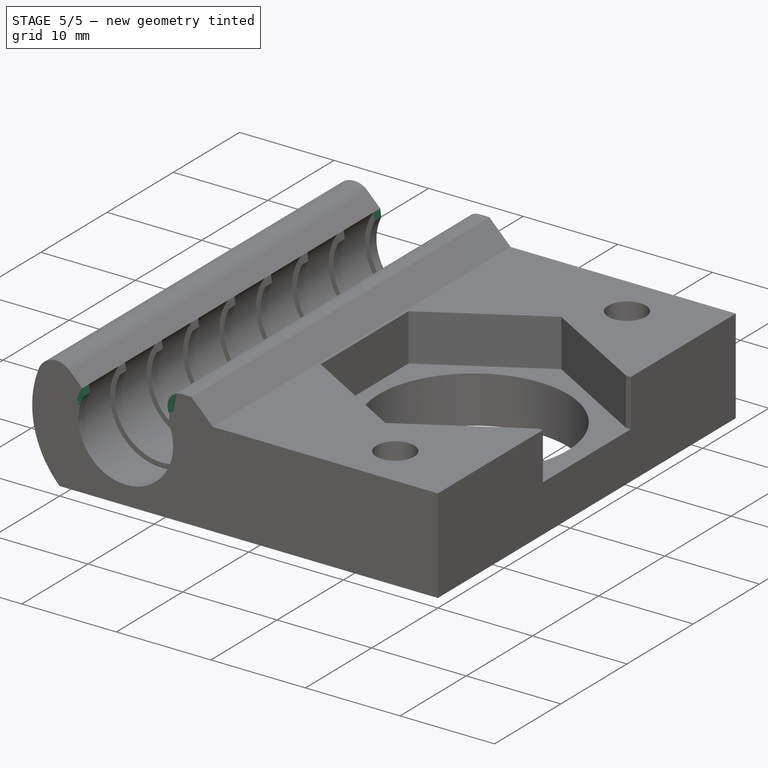
[diagram: stage 5 of 5 — iso view after this stage's code; geometry added in this stage tinted green]
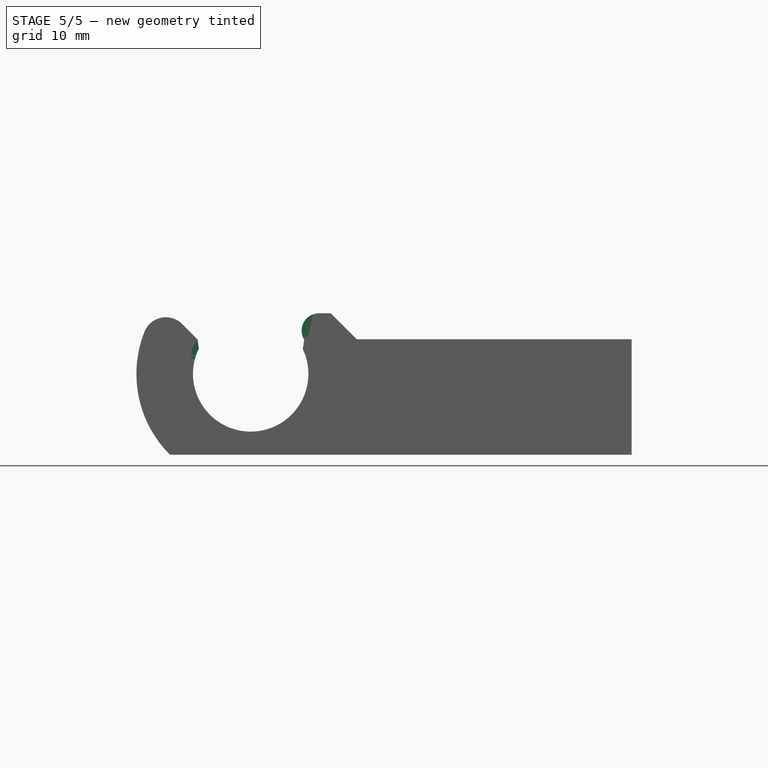
[diagram: stage 5 of 5 — front view after this stage's code; geometry added in this stage tinted green]
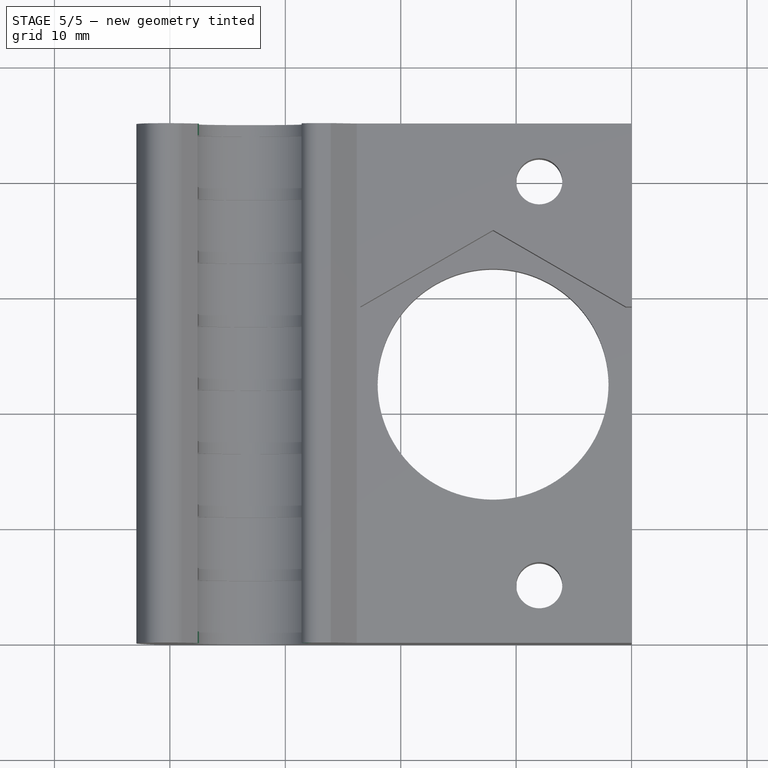
[diagram: stage 5 of 5 — top view after this stage's code; geometry added in this stage tinted green]
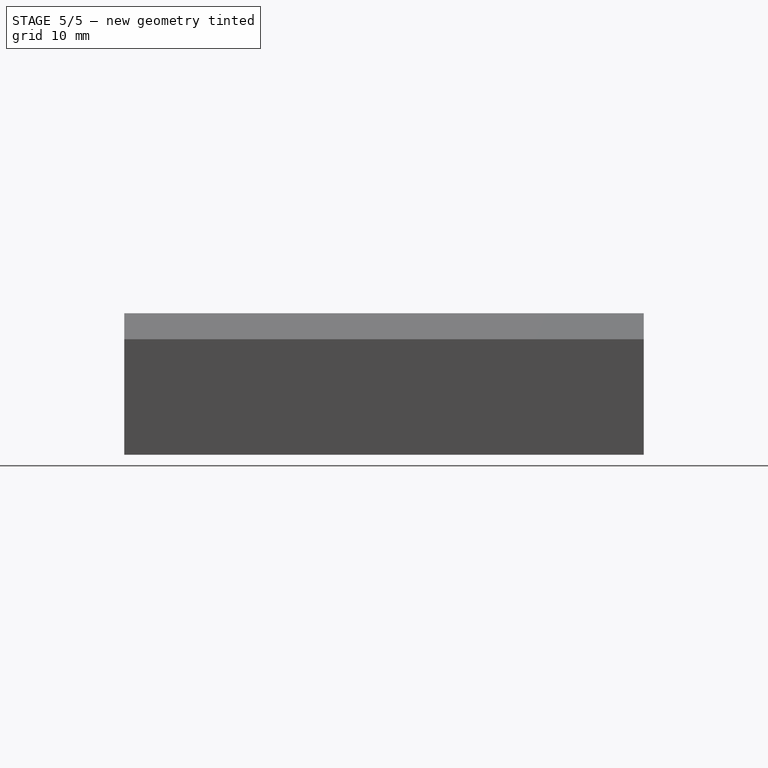
[diagram: stage 5 of 5 — right view after this stage's code; geometry added in this stage tinted green]
FEATURE [Sketcher::SketchObject] Sketch005
  ExternalGeometry = -> [Fillet001]
  Placement = pos=(0,0,0) rot=(1,0,0;1.5708rad)
  Support = -> Fillet001 [Face1]
  sketch-geometry (4):
    g0: ArcOfCircle CenterX=7 CenterY=7 CenterZ=0 NormalX=0 NormalY=0 NormalZ=1 Radius=5.5 StartAngle=0 EndAngle=1.26813
    g1: LineSegment StartX=8.63936 StartY=12.25 StartZ=0 EndX=13.9347 EndY=12.25 EndZ=0
    g2: LineSegment StartX=13.9347 StartY=12.25 StartZ=0 EndX=16.1847 EndY=10 EndZ=0
    g3: LineSegment StartX=16.1847 StartY=10 StartZ=0 EndX=12.5 EndY=7 EndZ=0
  constraints (11):
    c: Coincident(g0,g-3)
    c: Coincident(g0,g-3)
    c: Coincident(g0,g1)
    c: Coincident(g1,g2)
    c: PointOnObject(g2,g-4)
    c: Coincident(g2,g3)
    c: Coincident(g3,g0)
    c: Horizontal(g1)
    c: Angle(g2,g-4) = 0.785398
    c: DistanceY(g1,g-4) = -2.25
    c: DistanceX(g2,g-4) = -3
FEATURE [PartDesign::Pad] Pad002
  Length = 45
  Length2 = 100
  Reversed = true
  Sketch = -> Sketch005
  Type = 0
FEATURE [PartDesign::Fillet] Fillet002
  Base = -> Pad002 [Edge1]
  Radius = 1.5
FEATURE [Sketcher::SketchObject] Sketch006
  ExternalGeometry = -> [Fillet002]
  Placement = pos=(0,0,0) rot=(1,0,0;1.5708rad)
  Support = -> Fillet002 [Face11]
  sketch-geometry (4):
    g0: ArcOfCircle CenterX=7 CenterY=7 CenterZ=0 NormalX=0 NormalY=0 NormalZ=1 Radius=5 StartAngle=2.58586 EndAngle=6.82611
    g1: ArcOfCircle CenterX=7 CenterY=7 CenterZ=0 NormalX=0 NormalY=0 NormalZ=1 Radius=6 StartAngle=2.54706 EndAngle=6.86714
    g2: LineSegment StartX=11.281 StartY=9.58323 StartZ=0 EndX=12.0057 EndY=10.308 EndZ=0
    g3: LineSegment StartX=2.75242 StartY=9.63781 StartZ=0 EndX=2.02952 EndY=10.3607 EndZ=0
  constraints (12):
    c: Coincident(g0,g-4)
    c: Coincident(g1,g0)
    c: Coincident(g2,g0)
    c: Coincident(g2,g1)
    c: Coincident(g3,g0)
    c: Coincident(g3,g1)
    c: PointOnObject(g-4,g3)
    c: PointOnObject(g-5,g2)
    c: Radius(g0) = 5
    c: Radius(g1) = 6
    c: Perpendicular(g2,g3)
    c: Angle(g3,g-1) = 0.785398
FEATURE [PartDesign::Pad] Pad003
  Length = 1
  Length2 = 100
  Reversed = true
  Sketch = -> Sketch006
  Type = 0
FEATURE [PartDesign::LinearPattern] LinearPattern
  Direction = -> Pad003 [Edge19]
  Length = 44
  Occurrences = 9
  Originals = -> [Pad003]
FEATURE [PartDesign::Chamfer] Chamfer001
  Base = -> LinearPattern [Edge1,Edge208,Edge222,Edge236,Edge250,Edge246,Edge232,Edge218,Edge204,Edge2,Edge103,Edge115,Edge127,Edge139,Edge136,Edge124,Edge112,Edge100]
  Size = 0.5
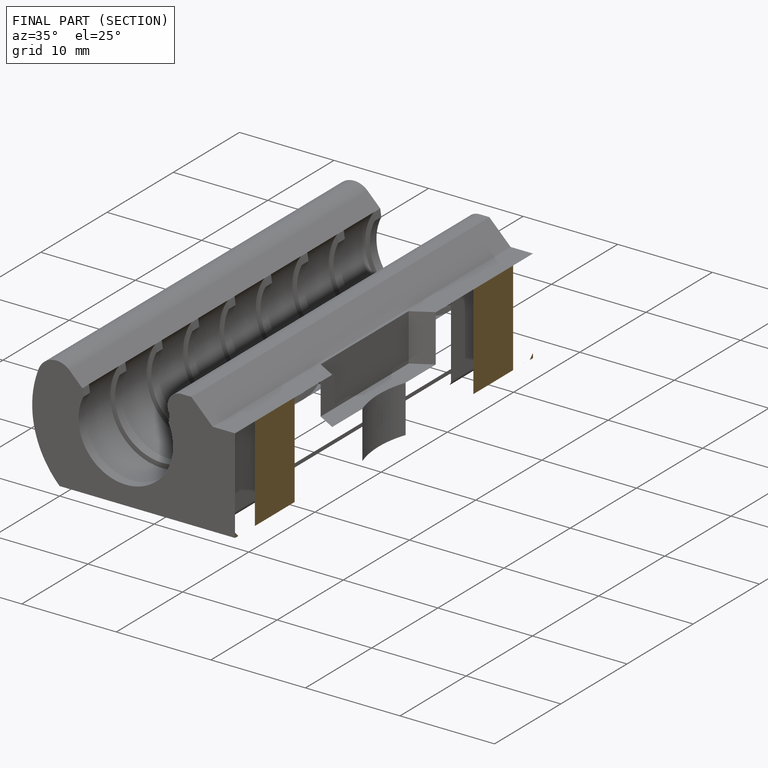
[diagram: finished part — half-section view (interior)]
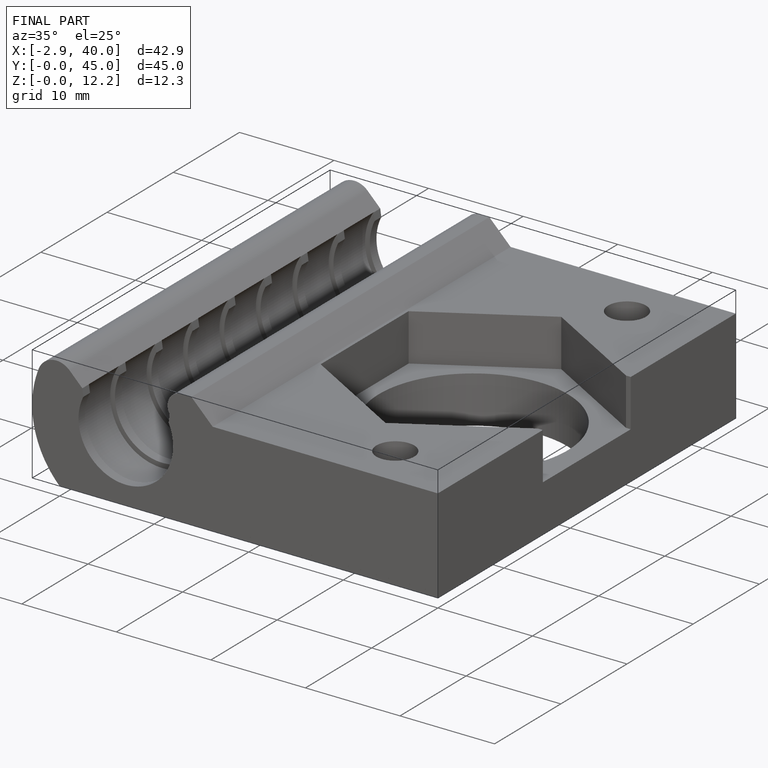
[diagram: finished part — iso view with bounding-box wireframe]
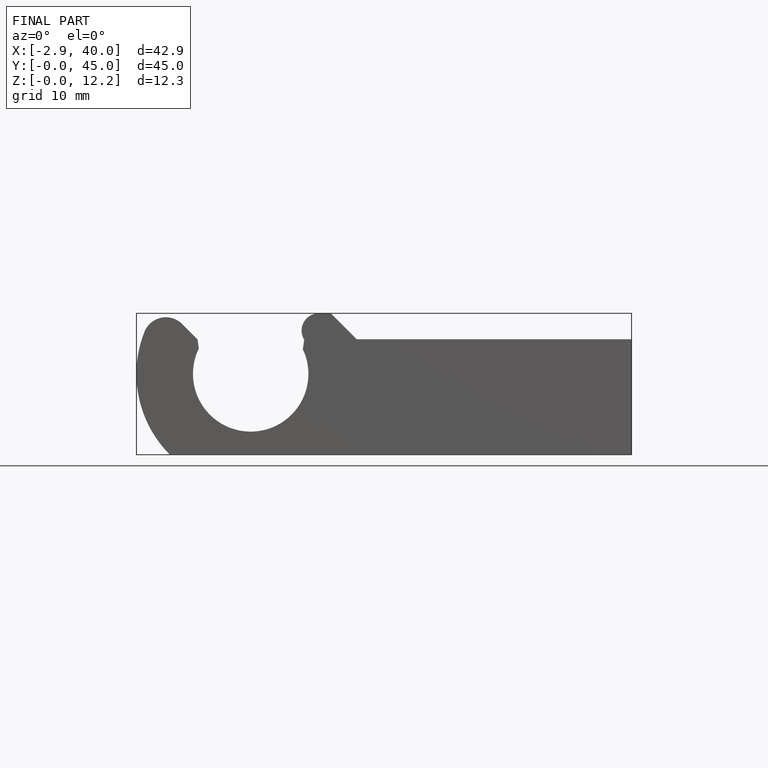
[diagram: finished part — front view with bounding-box wireframe]
